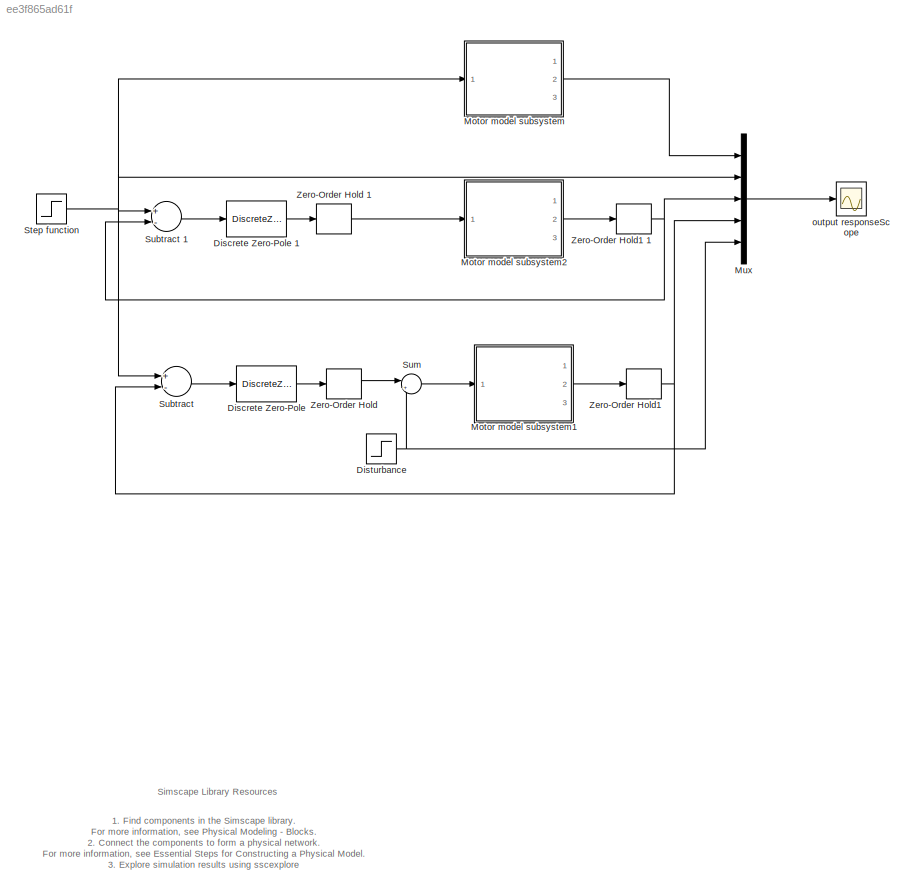
MODEL slx_ee3f865ad61f
KIND model
CONFIG AbsTol = 1e-3
CONFIG EnableMultiTasking = off
CONFIG FixedStep = auto
CONFIG MaxStep = auto
CONFIG MinStep = auto
CONFIG RelTol = 1e-3
CONFIG SampleTimeConstraint = Unconstrained
CONFIG Solver = VariableStepAuto
CONFIG SolverName = VariableStepAuto
CONFIG StartTime = 0.0
CONFIG StopTime = 0.1
BLOCK [DiscreteZeroPole] Discrete Zero-Pole 
  Gain = 800
  Poles = [-0.98 0.6 1]
  SampleTime = -1
  Zeros = [0.95 0.8 0.8]
BLOCK [DiscreteZeroPole] Discrete Zero-Pole 1
  Gain = 800
  Poles = [-0.98 0.6 1]
  SampleTime = -1
  Zeros = [0.95 0.8 0.8]
BLOCK [Step] Disturbance
  SampleTime = 0
  Time = 0.03
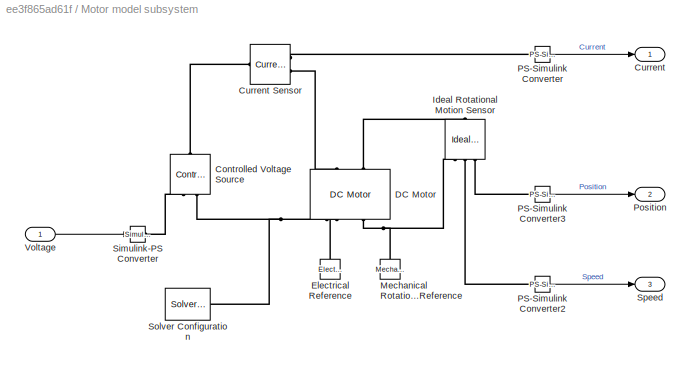
BLOCK [SubSystem] Motor model subsystem
  Ports = [1, 3]
  RequestExecContextInheritance = off
BLOCK [Reference] Motor model subsystem/Controlled Voltage Source   REF=fl_lib/Electrical/Electrical Sources/Controlled Voltage
Source
  Ports = [0, 0, 0, 0, 0, 1, 2]
  SourceBlock = fl_lib/Electrical/Electrical Sources/Controlled Voltage\nSource
  SourceProductBaseCode = SS
  SourceProductName = Simscape
  SourceType = Controlled Voltage\nSource
BLOCK [Outport] Motor model subsystem/Current
  IconDisplay = Port number
BLOCK [Reference] Motor model subsystem/Current Sensor   REF=fl_lib/Electrical/Electrical Sensors/Current Sensor
  Ports = [0, 0, 0, 0, 0, 1, 2]
  SourceBlock = fl_lib/Electrical/Electrical Sensors/Current Sensor
  SourceProductBaseCode = SS
  SourceProductName = Simscape
  SourceType = Current Sensor
BLOCK [Reference] Motor model subsystem/DC Motor   REF=ee_lib/Electromechanical/Brushed Motors/DC Motor
  Ports = [0, 0, 0, 0, 0, 2, 2]
  SourceBlock = ee_lib/Electromechanical/Brushed Motors/DC Motor
  SourceProductBaseCode = PS
  SourceProductName = Simscape Electrical
  SourceType = DC Motor
BLOCK [Reference] Motor model subsystem/Electrical Reference  REF=fl_lib/Electrical/Electrical Elements/Electrical Reference
  Ports = [0, 0, 0, 0, 0, 1]
  SourceBlock = fl_lib/Electrical/Electrical Elements/Electrical Reference
  SourceProductBaseCode = SS
  SourceProductName = Simscape
  SourceType = Electrical Reference
BLOCK [Reference] Motor model subsystem/Ideal Rotational Motion Sensor   REF=fl_lib/Mechanical/Mechanical Sensors/Ideal Rotational
Motion Sensor
  Ports = [0, 0, 0, 0, 0, 1, 3]
  SourceBlock = fl_lib/Mechanical/Mechanical Sensors/Ideal Rotational\nMotion Sensor
  SourceProductBaseCode = SS
  SourceProductName = Simscape
  SourceType = Ideal Rotational\nMotion Sensor
BLOCK [Reference] Motor model subsystem/Mechanical Rotational Reference  REF=fl_lib/Mechanical/Rotational Elements/Mechanical
Rotational Reference
  Ports = [0, 0, 0, 0, 0, 1]
  SourceBlock = fl_lib/Mechanical/Rotational Elements/Mechanical\nRotational Reference
  SourceProductBaseCode = SS
  SourceProductName = Simscape
  SourceType = Mechanical\nRotational Reference
BLOCK [Reference] Motor model subsystem/PS-Simulink Converter   REF=nesl_utility/PS-Simulink
Converter
  Ports = [0, 1, 0, 0, 0, 1]
  SourceBlock = nesl_utility/PS-Simulink\nConverter
  SourceProductBaseCode = SS
  SourceProductName = Simscape
  SourceType = PS-Simulink\nConverter
BLOCK [Reference] Motor model subsystem/PS-Simulink Converter2   REF=nesl_utility/PS-Simulink
Converter
  Ports = [0, 1, 0, 0, 0, 1]
  SourceBlock = nesl_utility/PS-Simulink\nConverter
  SourceProductBaseCode = SS
  SourceProductName = Simscape
  SourceType = PS-Simulink\nConverter
BLOCK [Reference] Motor model subsystem/PS-Simulink Converter3   REF=nesl_utility/PS-Simulink
Converter
  Ports = [0, 1, 0, 0, 0, 1]
  SourceBlock = nesl_utility/PS-Simulink\nConverter
  SourceProductBaseCode = SS
  SourceProductName = Simscape
  SourceType = PS-Simulink\nConverter
BLOCK [Outport] Motor model subsystem/Position
  IconDisplay = Port number
  Port = 2
BLOCK [Reference] Motor model subsystem/Simulink-PS Converter   REF=nesl_utility/Simulink-PS
Converter
  Ports = [1, 0, 0, 0, 0, 0, 1]
  SourceBlock = nesl_utility/Simulink-PS\nConverter
  SourceProductBaseCode = SS
  SourceProductName = Simscape
  SourceType = Simulink-PS\nConverter
BLOCK [Reference] Motor model subsystem/Solver Configuration   REF=nesl_utility/Solver
Configuration
  Ports = [0, 0, 0, 0, 0, 0, 1]
  SourceBlock = nesl_utility/Solver\nConfiguration
  SourceProductBaseCode = SS
  SourceProductName = Simscape
  SourceType = Solver\nConfiguration
BLOCK [Outport] Motor model subsystem/Speed
  IconDisplay = Port number
  Port = 3
BLOCK [Inport] Motor model subsystem/Voltage
  IconDisplay = Port number
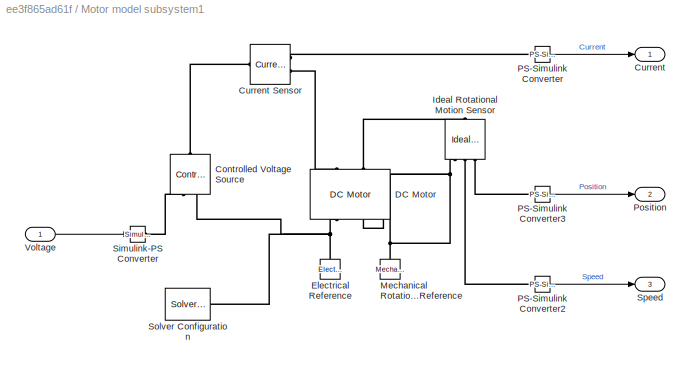
BLOCK [SubSystem] Motor model subsystem1
  Ports = [1, 3]
  RequestExecContextInheritance = off
BLOCK [Reference] Motor model subsystem1/Controlled Voltage Source   REF=fl_lib/Electrical/Electrical Sources/Controlled Voltage
Source
  Ports = [0, 0, 0, 0, 0, 1, 2]
  SourceBlock = fl_lib/Electrical/Electrical Sources/Controlled Voltage\nSource
  SourceProductBaseCode = SS
  SourceProductName = Simscape
  SourceType = Controlled Voltage\nSource
BLOCK [Outport] Motor model subsystem1/Current
  IconDisplay = Port number
BLOCK [Reference] Motor model subsystem1/Current Sensor   REF=fl_lib/Electrical/Electrical Sensors/Current Sensor
  Ports = [0, 0, 0, 0, 0, 1, 2]
  SourceBlock = fl_lib/Electrical/Electrical Sensors/Current Sensor
  SourceProductBaseCode = SS
  SourceProductName = Simscape
  SourceType = Current Sensor
BLOCK [Reference] Motor model subsystem1/DC Motor   REF=ee_lib/Electromechanical/Brushed Motors/DC Motor
  Ports = [0, 0, 0, 0, 0, 2, 2]
  SourceBlock = ee_lib/Electromechanical/Brushed Motors/DC Motor
  SourceProductBaseCode = PS
  SourceProductName = Simscape Electrical
  SourceType = DC Motor
BLOCK [Reference] Motor model subsystem1/Electrical Reference  REF=fl_lib/Electrical/Electrical Elements/Electrical Reference
  Ports = [0, 0, 0, 0, 0, 1]
  SourceBlock = fl_lib/Electrical/Electrical Elements/Electrical Reference
  SourceProductBaseCode = SS
  SourceProductName = Simscape
  SourceType = Electrical Reference
BLOCK [Reference] Motor model subsystem1/Ideal Rotational Motion Sensor   REF=fl_lib/Mechanical/Mechanical Sensors/Ideal Rotational
Motion Sensor
  Ports = [0, 0, 0, 0, 0, 1, 3]
  SourceBlock = fl_lib/Mechanical/Mechanical Sensors/Ideal Rotational\nMotion Sensor
  SourceProductBaseCode = SS
  SourceProductName = Simscape
  SourceType = Ideal Rotational\nMotion Sensor
BLOCK [Reference] Motor model subsystem1/Mechanical Rotational Reference  REF=fl_lib/Mechanical/Rotational Elements/Mechanical
Rotational Reference
  Ports = [0, 0, 0, 0, 0, 1]
  SourceBlock = fl_lib/Mechanical/Rotational Elements/Mechanical\nRotational Reference
  SourceProductBaseCode = SS
  SourceProductName = Simscape
  SourceType = Mechanical\nRotational Reference
BLOCK [Reference] Motor model subsystem1/PS-Simulink Converter   REF=nesl_utility/PS-Simulink
Converter
  Ports = [0, 1, 0, 0, 0, 1]
  SourceBlock = nesl_utility/PS-Simulink\nConverter
  SourceProductBaseCode = SS
  SourceProductName = Simscape
  SourceType = PS-Simulink\nConverter
BLOCK [Reference] Motor model subsystem1/PS-Simulink Converter2   REF=nesl_utility/PS-Simulink
Converter
  Ports = [0, 1, 0, 0, 0, 1]
  SourceBlock = nesl_utility/PS-Simulink\nConverter
  SourceProductBaseCode = SS
  SourceProductName = Simscape
  SourceType = PS-Simulink\nConverter
BLOCK [Reference] Motor model subsystem1/PS-Simulink Converter3   REF=nesl_utility/PS-Simulink
Converter
  Ports = [0, 1, 0, 0, 0, 1]
  SourceBlock = nesl_utility/PS-Simulink\nConverter
  SourceProductBaseCode = SS
  SourceProductName = Simscape
  SourceType = PS-Simulink\nConverter
BLOCK [Outport] Motor model subsystem1/Position
  IconDisplay = Port number
  Port = 2
BLOCK [Reference] Motor model subsystem1/Simulink-PS Converter   REF=nesl_utility/Simulink-PS
Converter
  Ports = [1, 0, 0, 0, 0, 0, 1]
  SourceBlock = nesl_utility/Simulink-PS\nConverter
  SourceProductBaseCode = SS
  SourceProductName = Simscape
  SourceType = Simulink-PS\nConverter
BLOCK [Reference] Motor model subsystem1/Solver Configuration   REF=nesl_utility/Solver
Configuration
  Ports = [0, 0, 0, 0, 0, 0, 1]
  SourceBlock = nesl_utility/Solver\nConfiguration
  SourceProductBaseCode = SS
  SourceProductName = Simscape
  SourceType = Solver\nConfiguration
BLOCK [Outport] Motor model subsystem1/Speed
  IconDisplay = Port number
  Port = 3
BLOCK [Inport] Motor model subsystem1/Voltage
  IconDisplay = Port number
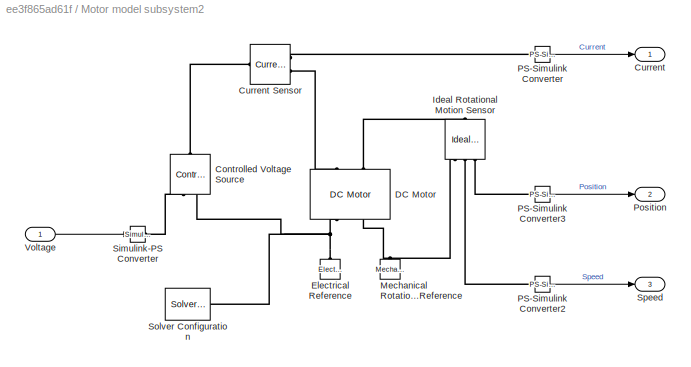
BLOCK [SubSystem] Motor model subsystem2
  Ports = [1, 3]
  RequestExecContextInheritance = off
BLOCK [Reference] Motor model subsystem2/Controlled Voltage Source   REF=fl_lib/Electrical/Electrical Sources/Controlled Voltage
Source
  Ports = [0, 0, 0, 0, 0, 1, 2]
  SourceBlock = fl_lib/Electrical/Electrical Sources/Controlled Voltage\nSource
  SourceProductBaseCode = SS
  SourceProductName = Simscape
  SourceType = Controlled Voltage\nSource
BLOCK [Outport] Motor model subsystem2/Current
  IconDisplay = Port number
BLOCK [Reference] Motor model subsystem2/Current Sensor   REF=fl_lib/Electrical/Electrical Sensors/Current Sensor
  Ports = [0, 0, 0, 0, 0, 1, 2]
  SourceBlock = fl_lib/Electrical/Electrical Sensors/Current Sensor
  SourceProductBaseCode = SS
  SourceProductName = Simscape
  SourceType = Current Sensor
BLOCK [Reference] Motor model subsystem2/DC Motor   REF=ee_lib/Electromechanical/Brushed Motors/DC Motor
  Ports = [0, 0, 0, 0, 0, 2, 2]
  SourceBlock = ee_lib/Electromechanical/Brushed Motors/DC Motor
  SourceProductBaseCode = PS
  SourceProductName = Simscape Electrical
  SourceType = DC Motor
BLOCK [Reference] Motor model subsystem2/Electrical Reference  REF=fl_lib/Electrical/Electrical Elements/Electrical Reference
  Ports = [0, 0, 0, 0, 0, 1]
  SourceBlock = fl_lib/Electrical/Electrical Elements/Electrical Reference
  SourceProductBaseCode = SS
  SourceProductName = Simscape
  SourceType = Electrical Reference
BLOCK [Reference] Motor model subsystem2/Ideal Rotational Motion Sensor   REF=fl_lib/Mechanical/Mechanical Sensors/Ideal Rotational
Motion Sensor
  Ports = [0, 0, 0, 0, 0, 1, 3]
  SourceBlock = fl_lib/Mechanical/Mechanical Sensors/Ideal Rotational\nMotion Sensor
  SourceProductBaseCode = SS
  SourceProductName = Simscape
  SourceType = Ideal Rotational\nMotion Sensor
BLOCK [Reference] Motor model subsystem2/Mechanical Rotational Reference  REF=fl_lib/Mechanical/Rotational Elements/Mechanical
Rotational Reference
  Ports = [0, 0, 0, 0, 0, 1]
  SourceBlock = fl_lib/Mechanical/Rotational Elements/Mechanical\nRotational Reference
  SourceProductBaseCode = SS
  SourceProductName = Simscape
  SourceType = Mechanical\nRotational Reference
BLOCK [Reference] Motor model subsystem2/PS-Simulink Converter   REF=nesl_utility/PS-Simulink
Converter
  Ports = [0, 1, 0, 0, 0, 1]
  SourceBlock = nesl_utility/PS-Simulink\nConverter
  SourceProductBaseCode = SS
  SourceProductName = Simscape
  SourceType = PS-Simulink\nConverter
BLOCK [Reference] Motor model subsystem2/PS-Simulink Converter2   REF=nesl_utility/PS-Simulink
Converter
  Ports = [0, 1, 0, 0, 0, 1]
  SourceBlock = nesl_utility/PS-Simulink\nConverter
  SourceProductBaseCode = SS
  SourceProductName = Simscape
  SourceType = PS-Simulink\nConverter
BLOCK [Reference] Motor model subsystem2/PS-Simulink Converter3   REF=nesl_utility/PS-Simulink
Converter
  Ports = [0, 1, 0, 0, 0, 1]
  SourceBlock = nesl_utility/PS-Simulink\nConverter
  SourceProductBaseCode = SS
  SourceProductName = Simscape
  SourceType = PS-Simulink\nConverter
BLOCK [Outport] Motor model subsystem2/Position
  IconDisplay = Port number
  Port = 2
BLOCK [Reference] Motor model subsystem2/Simulink-PS Converter   REF=nesl_utility/Simulink-PS
Converter
  Ports = [1, 0, 0, 0, 0, 0, 1]
  SourceBlock = nesl_utility/Simulink-PS\nConverter
  SourceProductBaseCode = SS
  SourceProductName = Simscape
  SourceType = Simulink-PS\nConverter
BLOCK [Reference] Motor model subsystem2/Solver Configuration   REF=nesl_utility/Solver
Configuration
  Ports = [0, 0, 0, 0, 0, 0, 1]
  SourceBlock = nesl_utility/Solver\nConfiguration
  SourceProductBaseCode = SS
  SourceProductName = Simscape
  SourceType = Solver\nConfiguration
BLOCK [Outport] Motor model subsystem2/Speed
  IconDisplay = Port number
  Port = 3
BLOCK [Inport] Motor model subsystem2/Voltage
  IconDisplay = Port number
BLOCK [Mux] Mux
  DisplayOption = bar
  Inputs = 5
  Ports = [5, 1]
BLOCK [Step] Step function
  SampleTime = 0
  Time = 0
BLOCK [Sum] Subtract 
  InputSameDT = off
  Inputs = +-
  OutDataTypeStr = Inherit: Inherit via internal rule
  Ports = [2, 1]
  SaturateOnIntegerOverflow = off
BLOCK [Sum] Subtract 1
  InputSameDT = off
  Inputs = +-
  OutDataTypeStr = Inherit: Inherit via internal rule
  Ports = [2, 1]
  SaturateOnIntegerOverflow = off
BLOCK [Sum] Sum
  IconShape = round
  InputSameDT = off
  Inputs = |++
  OutDataTypeStr = Inherit: Inherit via internal rule
  Ports = [2, 1]
  SaturateOnIntegerOverflow = off
BLOCK [ZeroOrderHold] Zero-Order Hold 
  SampleTime = 0.001
BLOCK [ZeroOrderHold] Zero-Order Hold 1
  SampleTime = 0.001
BLOCK [ZeroOrderHold] Zero-Order Hold1 
  SampleTime = 0.001
BLOCK [ZeroOrderHold] Zero-Order Hold1 1
  SampleTime = 0.001
BLOCK [Scope] output responseScope 
  Floating = off
  NumInputPorts = 1
  Ports = [1]
  ScopeSpecificationString = Simulink.scopes.TimeScopeBlockCfg('CurrentConfiguration', extmgr.ConfigurationSet(extmgr.Configuration('Core','General UI',true),extmgr.Configuration('Core','Source UI',true),extmgr.Configuration('Sources','WiredSimulink',true,'DataLoggingVariableName','ScopeData2'),extmgr.Configuration('Visuals','Time Domain',true,'SerializedDisplays',{struct('MinYLimReal','-0.37242','MaxYLimReal','3.35178','YLab...<+1509ch>
ANNOTATION (root): 1. Find components in the Simscape library . For more information, see Physical Modeling - Blocks . 2. Connect the components to form a physical network. For more information, see Essential Steps for Constructing a Physical Model . 3. Explore simulation results using sscexplore
ANNOTATION (root): Simscape Library Resources
LINE Discrete Zero-Pole 1:1 -> Zero-Order Hold 1:1
LINE Discrete Zero-Pole :1 -> Zero-Order Hold :1
NET Disturbance:1 -> Mux:5, Sum:2
LINE Motor model subsystem/PS-Simulink Converter :1 -> Motor model subsystem/Current:1
LINE Motor model subsystem/PS-Simulink Converter2 :1 -> Motor model subsystem/Speed:1
LINE Motor model subsystem/PS-Simulink Converter3 :1 -> Motor model subsystem/Position:1
LINE Motor model subsystem/Voltage:1 -> Motor model subsystem/Simulink-PS Converter :1
LINE Motor model subsystem1/PS-Simulink Converter :1 -> Motor model subsystem1/Current:1
LINE Motor model subsystem1/PS-Simulink Converter2 :1 -> Motor model subsystem1/Speed:1
LINE Motor model subsystem1/PS-Simulink Converter3 :1 -> Motor model subsystem1/Position:1
LINE Motor model subsystem1/Voltage:1 -> Motor model subsystem1/Simulink-PS Converter :1
LINE Motor model subsystem1:2 -> Zero-Order Hold1 :1
LINE Motor model subsystem2/PS-Simulink Converter :1 -> Motor model subsystem2/Current:1
LINE Motor model subsystem2/PS-Simulink Converter2 :1 -> Motor model subsystem2/Speed:1
LINE Motor model subsystem2/PS-Simulink Converter3 :1 -> Motor model subsystem2/Position:1
LINE Motor model subsystem2/Voltage:1 -> Motor model subsystem2/Simulink-PS Converter :1
LINE Motor model subsystem2:2 -> Zero-Order Hold1 1:1
LINE Motor model subsystem:2 -> Mux:1
LINE Mux:1 -> output responseScope :1
NET Step function:1 -> Motor model subsystem:1, Mux:2, Subtract 1:1, Subtract :1
LINE Subtract 1:1 -> Discrete Zero-Pole 1:1
LINE Subtract :1 -> Discrete Zero-Pole :1
LINE Sum:1 -> Motor model subsystem1:1
LINE Zero-Order Hold 1:1 -> Motor model subsystem2:1
LINE Zero-Order Hold :1 -> Sum:1
NET Zero-Order Hold1 1:1 -> Mux:3, Subtract 1:2
NET Zero-Order Hold1 :1 -> Mux:4, Subtract :2
PLINE Motor model subsystem/Controlled Voltage Source :LConn1 -- Motor model subsystem/Current Sensor :LConn1
PLINE Motor model subsystem/Controlled Voltage Source :RConn1 -- Motor model subsystem/Simulink-PS Converter :RConn1
PNET net1: Motor model subsystem/Controlled Voltage Source :RConn2 -- Motor model subsystem/DC Motor :RConn1 -- Motor model subsystem/Electrical Reference:LConn1 -- Motor model subsystem/Solver Configuration :RConn1
PLINE Motor model subsystem/Current Sensor :RConn1 -- Motor model subsystem/PS-Simulink Converter :LConn1
PLINE Motor model subsystem/Current Sensor :RConn2 -- Motor model subsystem/DC Motor :LConn1
PLINE Motor model subsystem/DC Motor :LConn2 -- Motor model subsystem/Ideal Rotational Motion Sensor :LConn1
PNET net2: Motor model subsystem/DC Motor :RConn2 -- Motor model subsystem/Ideal Rotational Motion Sensor :RConn1 -- Motor model subsystem/Mechanical Rotational Reference:LConn1
PLINE Motor model subsystem/Ideal Rotational Motion Sensor :RConn2 -- Motor model subsystem/PS-Simulink Converter2 :LConn1
PLINE Motor model subsystem/Ideal Rotational Motion Sensor :RConn3 -- Motor model subsystem/PS-Simulink Converter3 :LConn1
PLINE Motor model subsystem1/Controlled Voltage Source :LConn1 -- Motor model subsystem1/Current Sensor :LConn1
PLINE Motor model subsystem1/Controlled Voltage Source :RConn1 -- Motor model subsystem1/Simulink-PS Converter :RConn1
PNET net3: Motor model subsystem1/Controlled Voltage Source :RConn2 -- Motor model subsystem1/DC Motor :RConn1 -- Motor model subsystem1/Electrical Reference:LConn1 -- Motor model subsystem1/Solver Configuration :RConn1
PLINE Motor model subsystem1/Current Sensor :RConn1 -- Motor model subsystem1/PS-Simulink Converter :LConn1
PLINE Motor model subsystem1/Current Sensor :RConn2 -- Motor model subsystem1/DC Motor :LConn1
PLINE Motor model subsystem1/DC Motor :LConn2 -- Motor model subsystem1/Ideal Rotational Motion Sensor :LConn1
PNET net4: Motor model subsystem1/DC Motor :RConn2 -- Motor model subsystem1/Ideal Rotational Motion Sensor :RConn1 -- Motor model subsystem1/Mechanical Rotational Reference:LConn1
PLINE Motor model subsystem1/Ideal Rotational Motion Sensor :RConn2 -- Motor model subsystem1/PS-Simulink Converter2 :LConn1
PLINE Motor model subsystem1/Ideal Rotational Motion Sensor :RConn3 -- Motor model subsystem1/PS-Simulink Converter3 :LConn1
PLINE Motor model subsystem2/Controlled Voltage Source :LConn1 -- Motor model subsystem2/Current Sensor :LConn1
PLINE Motor model subsystem2/Controlled Voltage Source :RConn1 -- Motor model subsystem2/Simulink-PS Converter :RConn1
PNET net5: Motor model subsystem2/Controlled Voltage Source :RConn2 -- Motor model subsystem2/DC Motor :RConn1 -- Motor model subsystem2/Electrical Reference:LConn1 -- Motor model subsystem2/Solver Configuration :RConn1
PLINE Motor model subsystem2/Current Sensor :RConn1 -- Motor model subsystem2/PS-Simulink Converter :LConn1
PLINE Motor model subsystem2/Current Sensor :RConn2 -- Motor model subsystem2/DC Motor :LConn1
PLINE Motor model subsystem2/DC Motor :LConn2 -- Motor model subsystem2/Ideal Rotational Motion Sensor :LConn1
PNET net6: Motor model subsystem2/DC Motor :RConn2 -- Motor model subsystem2/Ideal Rotational Motion Sensor :RConn1 -- Motor model subsystem2/Mechanical Rotational Reference:LConn1
PLINE Motor model subsystem2/Ideal Rotational Motion Sensor :RConn2 -- Motor model subsystem2/PS-Simulink Converter2 :LConn1
PLINE Motor model subsystem2/Ideal Rotational Motion Sensor :RConn3 -- Motor model subsystem2/PS-Simulink Converter3 :LConn1
note: NET lines group one-source signal fan-out (src -> all destinations, sorted); 1:1 wires keep LINE; PNET lines group multi-terminal physical nets as a canonical sorted terminal list (undirected conserving connections); 2-terminal nets keep the pairwise PLINE form
